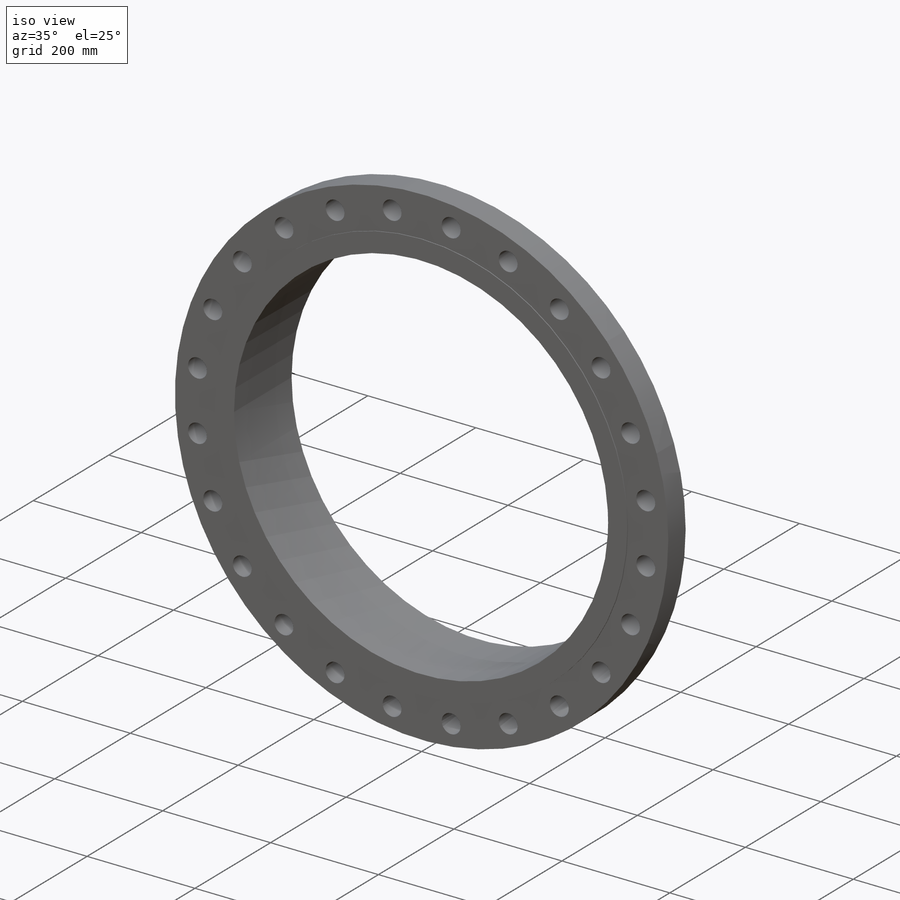
[diagram: iso view]
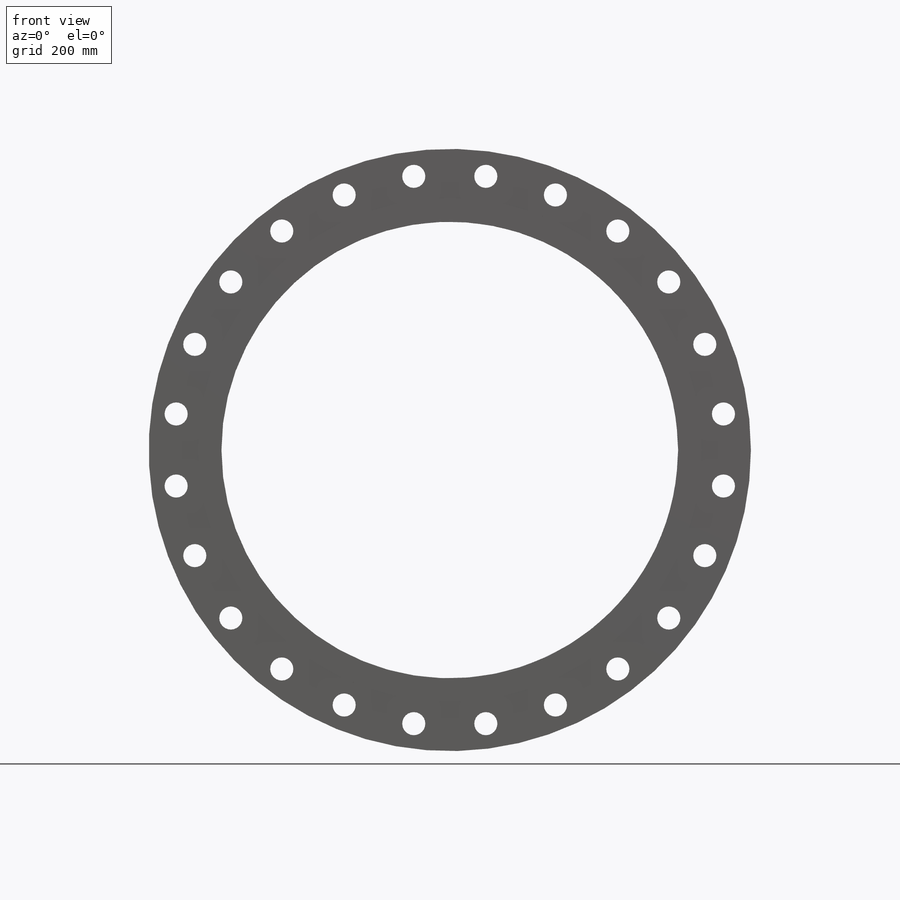
[diagram: front view]
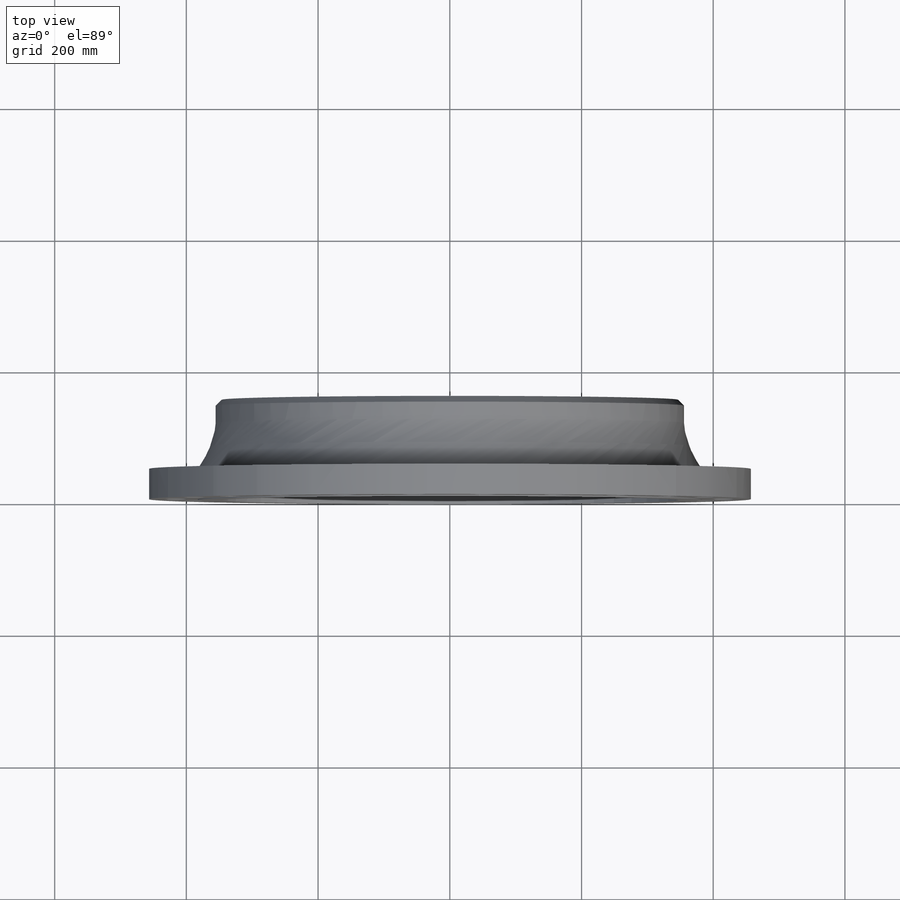
[diagram: top view]
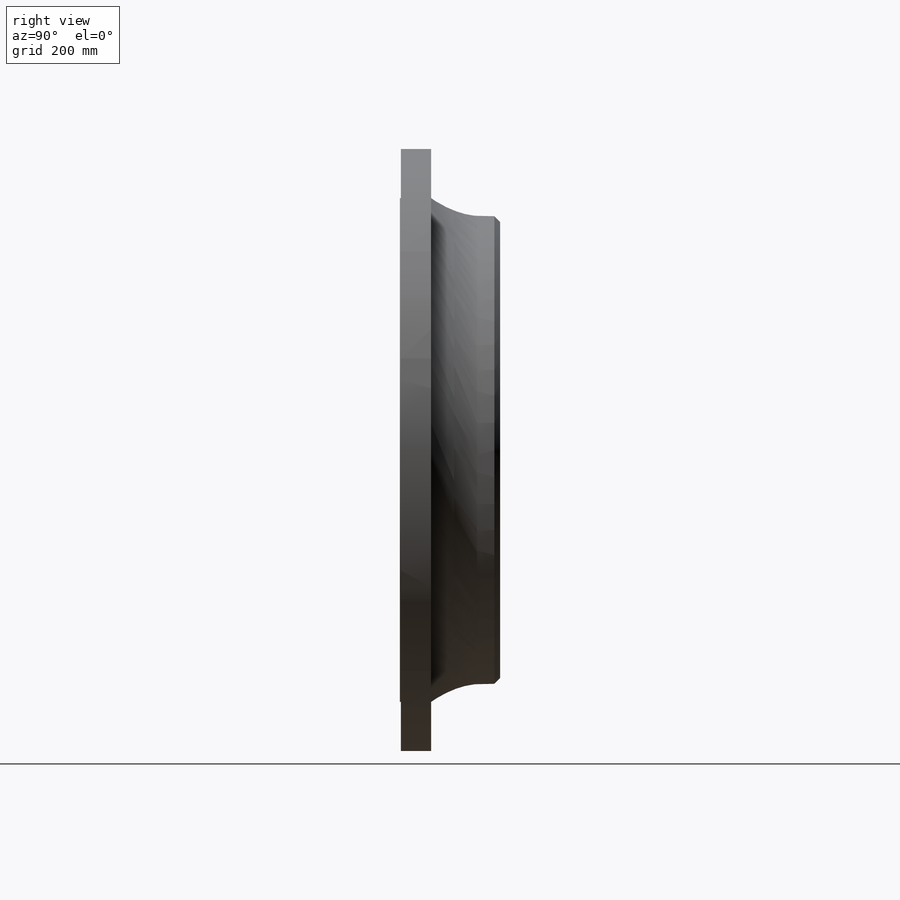
[diagram: right view]
SOLIDWORKS PART (.sldprt)
format: sldprt  version: not decoded by parser v0  size: 1,166,336 bytes
history: native  units: mm
features: sketch x8, plane x7, extrude x3, chamfer x3, material x1, cut_extrude x1, hole x1, pattern_circular x1 + 1 further entry (+12 scaffold rows collapsed; 1 parser-record rows omitted)
feature tree (39):
  parser-record x1  (decoder bookkeeping rows leaked as tree rows — omitted from the tree; the rows remain in map.json)
  scaffold x12  (default folders/planes/origin — collapsed)
  material  "Material <not specified>"
  plane  "front"
  plane  "top"
  plane  "side"
  "Design Table"
  sketch  "Hub Diameter"  dims[Diameter of Hub X=587.248mm]
  plane  "Flange Start Plane"  Offset=3.285067mm Flange Height=3.285067mm
  plane  "Flange End Plane"  Offset=61.976mm Thickness of Flange C=61.976mm
  extrude  "Hub"  Depth=1.524mm FaceExtension=1.524mm
  sketch  "Flange Diameter"  dims[Outside Diameter of Flange O=774.7mm]
  extrude  "Flange"  [1 undecoded]
  plane  "Loft Start Plane"  Offset=65.701333mm Length of Hub at chamfer=65.701333mm
  sketch  "hub dia at beginning of chamfer"  dims[D1=50.8mm]
  sketch  "Diameter of hub"  dims[Hub diameter Beginning of Chamfer Welding Neck A=508.0mm]
  plane  "Chamfer Start Plane"  Offset=160.528mm Hub Length for Welding Neck Y=160.528mm
  sketch  "hub diameter at chamfer start"  dims[D1=50.8mm]
  extrude  "Hub at chamfer"  [1 undecoded]
  chamfer  "Chamfer"  Distance=5.08mm Angle=45deg Chamfer Length=5.08mm
  sketch  "Bore Diameter"  dims[Bore Welding Neck B=497.84mm]
  cut_extrude  "Bore"  [1 undecoded]
  sketch  "Bolt Hole Diameter"  dims[c1.Diameter of Bolt Holes=35.052mm c1.Diameter of Bolt Circle=685.8mm c2.Diameter of Bolt Circle=82.55mm c2.D1=~21.260423mm c2.Angle=45.0deg c2.d=82.55mm c3.D1=~27.906507mm c3.Angle=7.5deg]
  hole  "Bolt Hole"  [1 undecoded]
  pattern_circular  "Bolt Holes pattern"  Count=24 Angle=15deg Number of Bolts=24 Angular position of Bolt Holes=15deg
  sketch  "Sketch1"
  chamfer  "Axis1"  Distance=508mm Diameter=508mm StubLength=0mm
  chamfer  "Axis of Rotation"  [1 undecoded]
decode coverage: 11 of 17 modeling features carry decoded parameters; 1 rows unclassified (native names shown)
note: ~ marks probable driven/reference dimensions
note: 5 parameter values undecoded
summary: no parameter record found for 5 features
note: suppression state not decoded; provenance and decode notes live in map.json
